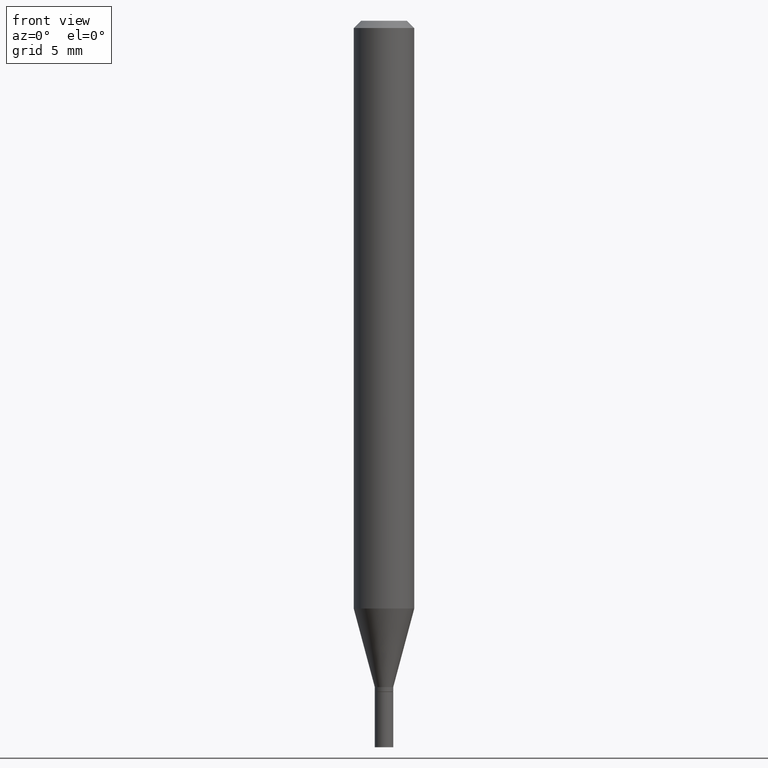
[diagram: clean part render]
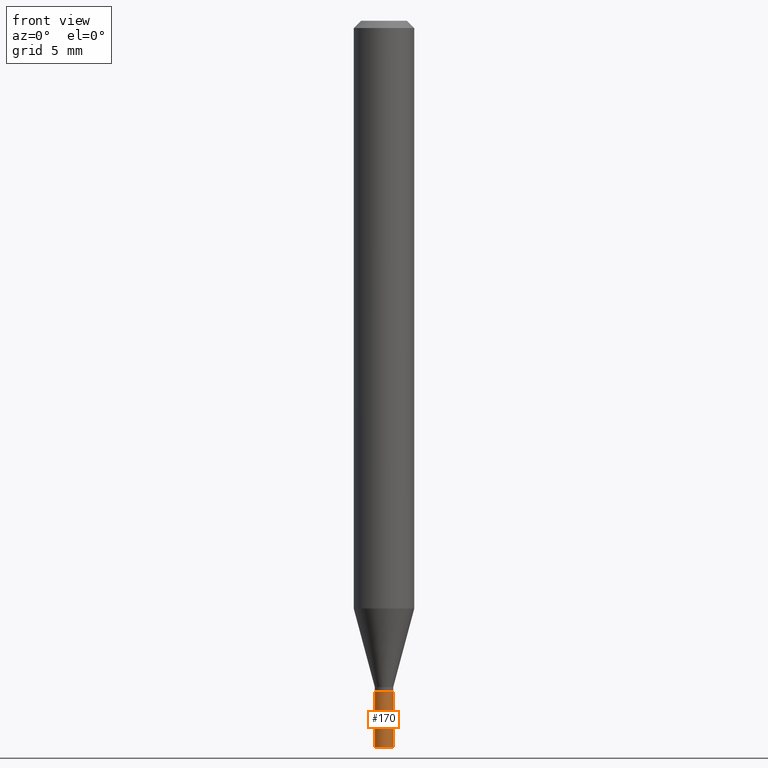
[diagram: same view with one face highlighted and labeled with its STEP entity id]
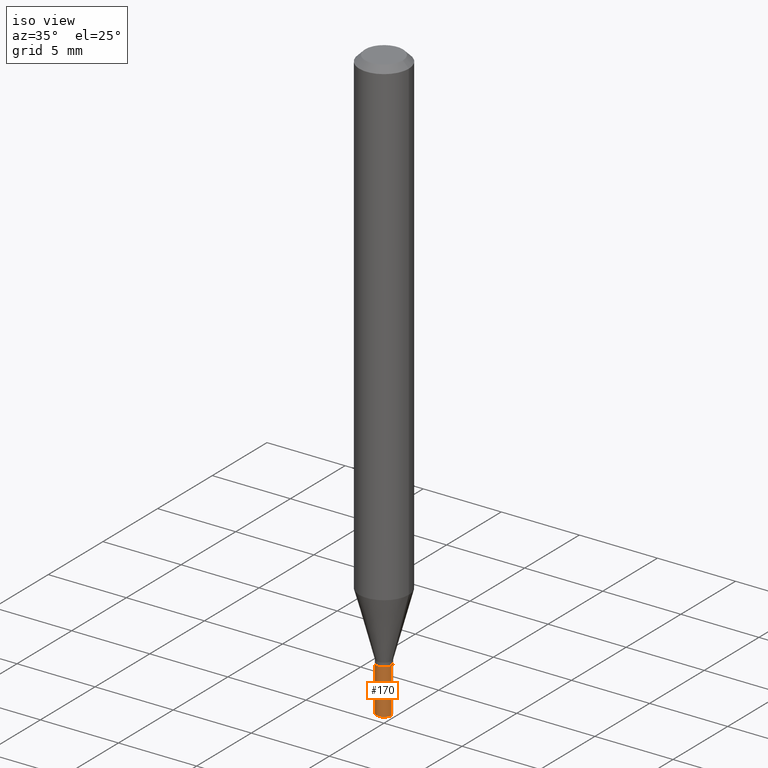
[diagram: same view with one face highlighted and labeled with its STEP entity id]
A machine part, front view. The second image highlights one B-rep face of the part: STEP entity #170.
A second angle (iso view) of the same face is appended — the face is thin or edge-on in the first view.
In plain terms, the highlighted cylindrical surface (edge-blend (fillet) strip) has radius 0.4826 mm, axis along (-0, 0, 1).
Its self-contained STEP definition (entity closure, byte-faithful):
#2 = LINE ( 'NONE', #113, #342 ) ;
#20 = EDGE_CURVE ( 'NONE', #217, #151, #265, .T. ) ;
#42 = CARTESIAN_POINT ( 'NONE',  ( 0.01899999999999999953, -5.369898299140757970E-15, -1.500000000000000222 ) ) ;
#50 = ORIENTED_EDGE ( 'NONE', *, *, #255, .F. ) ;
#68 = CYLINDRICAL_SURFACE ( 'NONE', #228, 0.01899999999999999953 ) ;
#79 = AXIS2_PLACEMENT_3D ( 'NONE', #247, #322, #241 ) ;
#109 = EDGE_CURVE ( 'NONE', #303, #217, #441, .T. ) ;
#111 = CARTESIAN_POINT ( 'NONE',  ( -0.01899999999999999953, -4.903204452156240515E-15, -1.386000000000000121 ) ) ;
#113 = CARTESIAN_POINT ( 'NONE',  ( -0.01899999999999999953, 1.350031197944190320E-16, -9.345976671484319990E-31 ) ) ;
#151 = VERTEX_POINT ( 'NONE', #176 ) ;
#156 = DIRECTION ( 'NONE',  ( -2.445468806185136597E-29, 3.491481338843145583E-15, 1.000000000000000000 ) ) ;
#170 = ADVANCED_FACE ( 'NONE', ( #363 ), #68, .T. ) ;
#176 = CARTESIAN_POINT ( 'NONE',  ( 0.01899999999999999953, -4.971869426512640168E-15, -1.386000000000000121 ) ) ;
#195 = ORIENTED_EDGE ( 'NONE', *, *, #109, .T. ) ;
#210 = DIRECTION ( 'NONE',  ( -2.445468806185136597E-29, 3.491481338843145583E-15, 1.000000000000000000 ) ) ;
#217 = VERTEX_POINT ( 'NONE', #42 ) ;
#228 = AXIS2_PLACEMENT_3D ( 'NONE', #281, #210, #391 ) ;
#234 = EDGE_CURVE ( 'NONE', #303, #355, #2, .T. ) ;
#236 = CARTESIAN_POINT ( 'NONE',  ( 0.01899999999999999953, -1.326762908760390537E-16, 9.264735874012277376E-31 ) ) ;
#238 = AXIS2_PLACEMENT_3D ( 'NONE', #368, #156, #402 ) ;
#241 = DIRECTION ( 'NONE',  ( 1.000000000000000000, -6.982962677686281699E-15, 0.000000000000000000 ) ) ;
#247 = CARTESIAN_POINT ( 'NONE',  ( 3.668203209277704895E-29, -5.237222008264718177E-15, -1.500000000000000222 ) ) ;
#255 = EDGE_CURVE ( 'NONE', #355, #151, #448, .T. ) ;
#265 = LINE ( 'NONE', #236, #394 ) ;
#281 = CARTESIAN_POINT ( 'NONE',  ( 0.000000000000000000, 0.000000000000000000, 0.000000000000000000 ) ) ;
#292 = CARTESIAN_POINT ( 'NONE',  ( -0.01899999999999999953, -4.903204452156240515E-15, -1.500000000000000222 ) ) ;
#301 = EDGE_LOOP ( 'NONE', ( #426, #195, #403, #50 ) ) ;
#303 = VERTEX_POINT ( 'NONE', #292 ) ;
#322 = DIRECTION ( 'NONE',  ( -2.445468806185136597E-29, 3.491481338843145583E-15, 1.000000000000000000 ) ) ;
#342 = VECTOR ( 'NONE', #366, 39.37007874015748143 ) ;
#351 = DIRECTION ( 'NONE',  ( -2.445468806185136877E-29, 3.491481338843145188E-15, 1.000000000000000000 ) ) ;
#355 = VERTEX_POINT ( 'NONE', #111 ) ;
#363 = FACE_OUTER_BOUND ( 'NONE', #301, .T. ) ;
#366 = DIRECTION ( 'NONE',  ( -2.445468806185136877E-29, 3.491481338843145188E-15, 1.000000000000000000 ) ) ;
#368 = CARTESIAN_POINT ( 'NONE',  ( 3.389419765372599969E-29, -4.839193135636600375E-15, -1.386000000000000121 ) ) ;
#391 = DIRECTION ( 'NONE',  ( 1.000000000000000000, -6.982962677686265922E-15, 4.876176775795935793E-29 ) ) ;
#394 = VECTOR ( 'NONE', #351, 39.37007874015748143 ) ;
#402 = DIRECTION ( 'NONE',  ( 1.000000000000000000, -6.982962677686281699E-15, 0.000000000000000000 ) ) ;
#403 = ORIENTED_EDGE ( 'NONE', *, *, #20, .T. ) ;
#426 = ORIENTED_EDGE ( 'NONE', *, *, #234, .F. ) ;
#441 = CIRCLE ( 'NONE', #79, 0.01899999999999999953 ) ;
#448 = CIRCLE ( 'NONE', #238, 0.01899999999999999953 ) ;